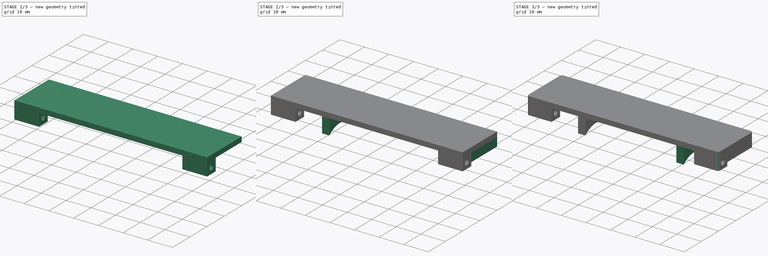
[diagram: build sequence overview — one tinted view per stage of 3, left to right]
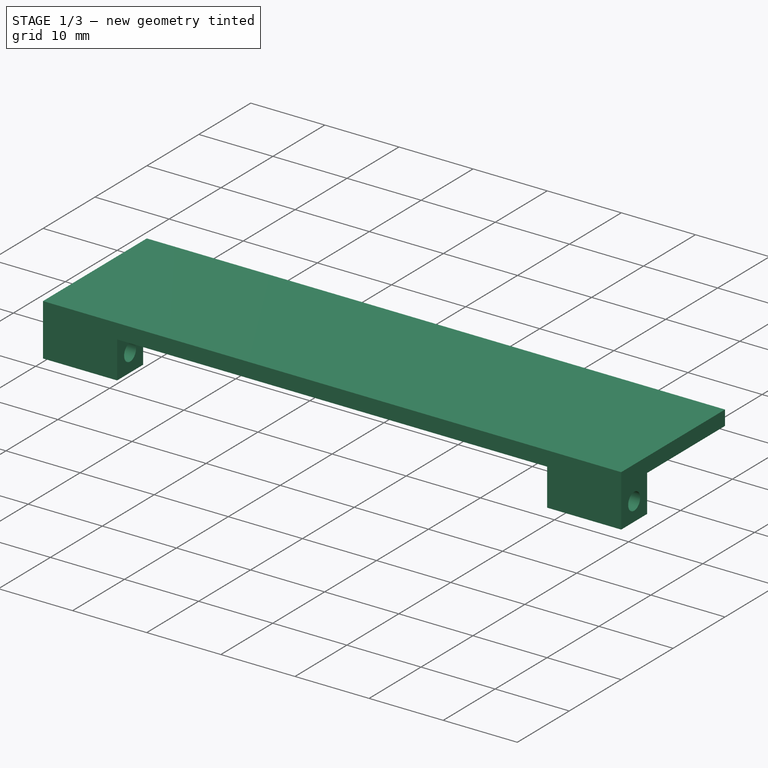
[diagram: stage 1 of 3 — iso view after this stage's code; geometry added in this stage tinted green]
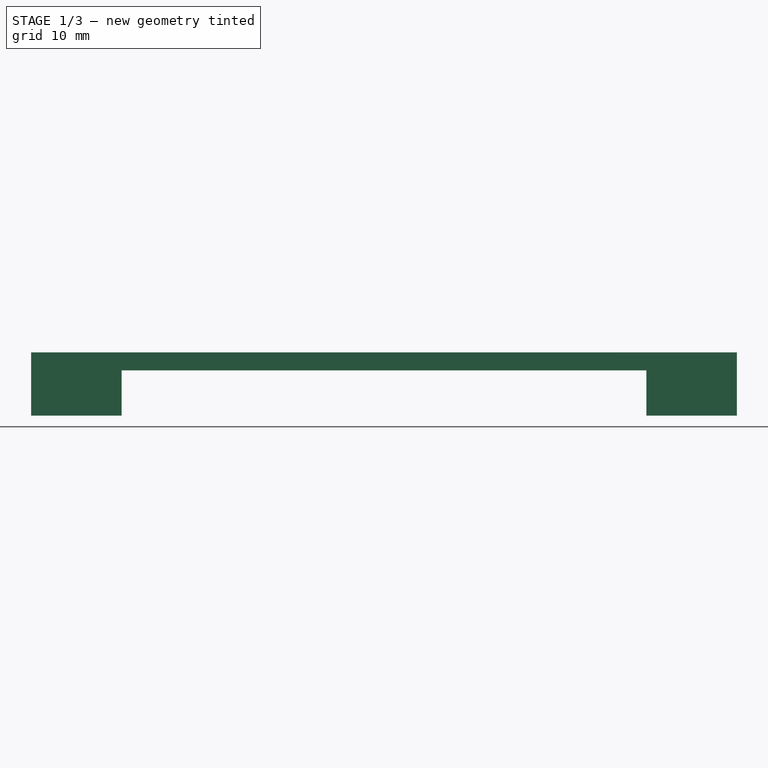
[diagram: stage 1 of 3 — front view after this stage's code; geometry added in this stage tinted green]
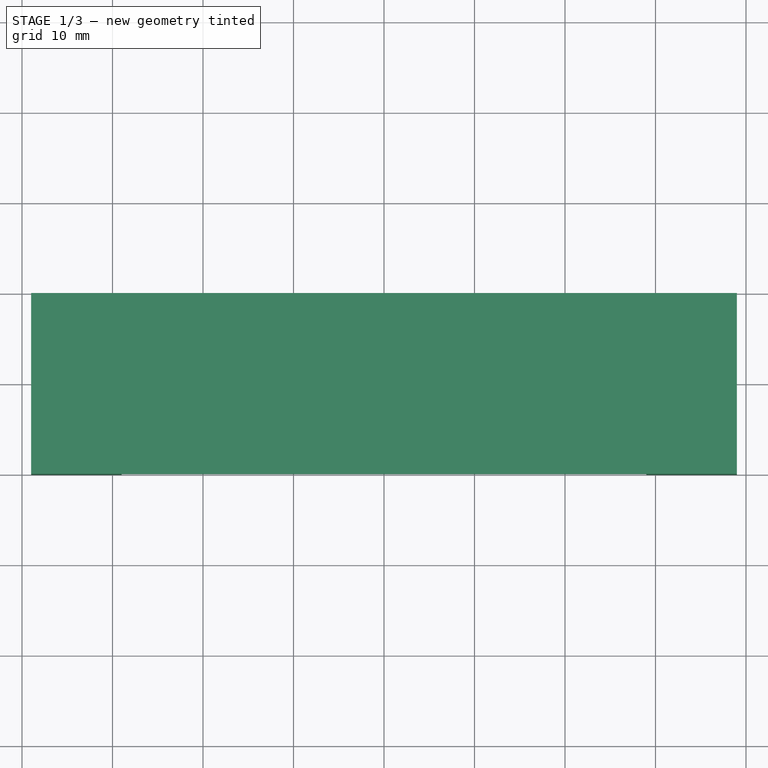
[diagram: stage 1 of 3 — top view after this stage's code; geometry added in this stage tinted green]
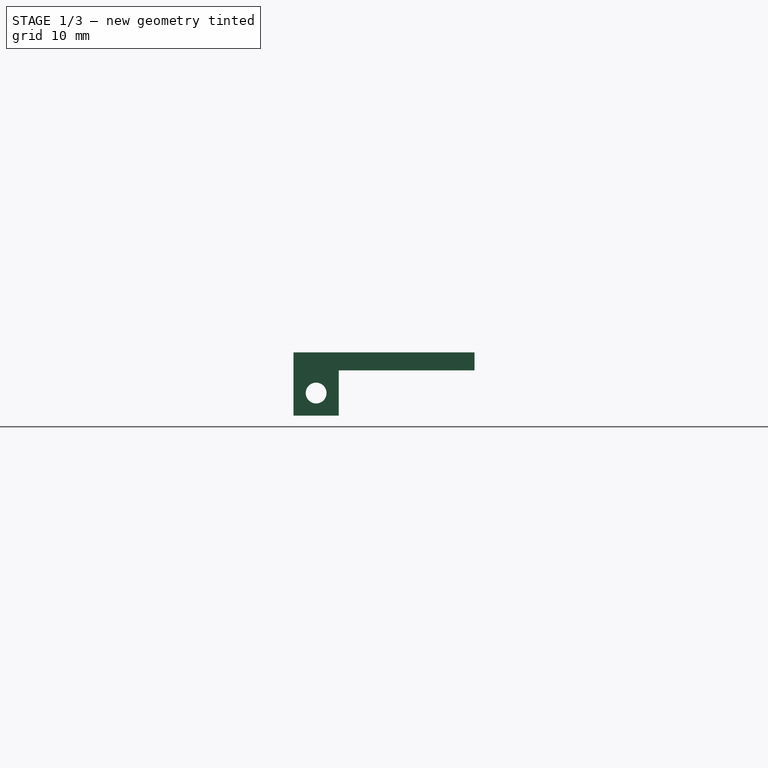
[diagram: stage 1 of 3 — right view after this stage's code; geometry added in this stage tinted green]
FCSTD DOCUMENT  (FreeCAD 0.21R33771 (Git))
Label: Battery_cover
License: All rights reserved
LicenseURL: http://en.wikipedia.org/wiki/All_rights_reserved
objects: Sketcher::SketchObject×7, PartDesign::Pad×6, PartDesign::Pocket×1, PartDesign::Fillet×1, PartDesign::Body×1
note: 24 computed .brp shape members not serialized (recipe doc carries the construction recipe); baked Part::Feature solids carry a one-line shape summary decoded from their .brp

FEATURE [Sketcher::SketchObject] Sketch
  FullyConstrained = true
  MapMode = 5
  Support = -> [XY_Plane]
  sketch-geometry (4):
    g0: LineSegment StartX=-39 StartY=10 StartZ=0 EndX=39 EndY=10 EndZ=0
    g1: LineSegment StartX=39 StartY=10 StartZ=0 EndX=39 EndY=-10 EndZ=0
    g2: LineSegment StartX=39 StartY=-10 StartZ=0 EndX=-39 EndY=-10 EndZ=0
    g3: LineSegment StartX=-39 StartY=-10 StartZ=0 EndX=-39 EndY=10 EndZ=0
  constraints (11):
    c: Coincident(g0,g1)
    c: Coincident(g1,g2)
    c: Coincident(g2,g3)
    c: Coincident(g3,g0)
    c: Horizontal(g0)
    c: Horizontal(g2)
    c: Vertical(g1)
    c: Vertical(g3)
    c: Symmetric(g2,g0,g-1)
    c: DistanceX(g0,g0) = 78
    c: DistanceY(g1,g1) = 20
FEATURE [PartDesign::Pad] Pad
  Direction = (0,0,1)
  Length = 2
  Length2 = 10
  Profile = -> Sketch
  ReferenceAxis = -> Sketch [N_Axis]
  Type = 0
FEATURE [Sketcher::SketchObject] Sketch001
  ExternalGeometry = -> [Pad]
  FullyConstrained = true
  MapMode = 5
  Placement = pos=(0,0,0) rot=(1,0,0;3.14159rad)
  Support = -> [Pad]
  sketch-geometry (8):
    g0: LineSegment StartX=29 StartY=10 StartZ=0 EndX=39 EndY=10 EndZ=0
    g1: LineSegment StartX=39 StartY=10 StartZ=0 EndX=39 EndY=5 EndZ=0
    g2: LineSegment StartX=39 StartY=5 StartZ=0 EndX=29 EndY=5 EndZ=0
    g3: LineSegment StartX=29 StartY=5 StartZ=0 EndX=29 EndY=10 EndZ=0
    g4: LineSegment StartX=-39 StartY=10 StartZ=0 EndX=-29 EndY=10 EndZ=0
    g5: LineSegment StartX=-29 StartY=10 StartZ=0 EndX=-29 EndY=5 EndZ=0
    g6: LineSegment StartX=-29 StartY=5 StartZ=0 EndX=-39 EndY=5 EndZ=0
    g7: LineSegment StartX=-39 StartY=5 StartZ=0 EndX=-39 EndY=10 EndZ=0
  constraints (22):
    c: Coincident(g0,g1)
    c: Coincident(g1,g2)
    c: Coincident(g2,g3)
    c: Coincident(g3,g0)
    c: Horizontal(g0)
    c: Horizontal(g2)
    c: Vertical(g1)
    c: Vertical(g3)
    c: Coincident(g4,g5)
    c: Coincident(g5,g6)
    c: Coincident(g6,g7)
    c: Coincident(g7,g4)
    c: Horizontal(g4)
    c: Horizontal(g6)
    c: Vertical(g5)
    c: Vertical(g7)
    c: Coincident(g4,g-4)
    c: Coincident(g0,g-3)
    c: Equal(g6,g2)
    c: Equal(g5,g3)
    c: DistanceY(g7,g7) = 5
    c: DistanceX(g4,g4) = 10
FEATURE [PartDesign::Pad] Pad001
  BaseFeature = -> Pad
  Direction = (0,0,-1)
  Length = 5
  Length2 = 10
  Profile = -> Sketch001
  ReferenceAxis = -> Sketch001 [N_Axis]
  Type = 0
FEATURE [Sketcher::SketchObject] Sketch002
  ExternalGeometry = -> [Pad001]
  FullyConstrained = true
  MapMode = 5
  Placement = pos=(39,0,0) rot=(0.57735,0.57735,0.57735;2.0944rad)
  Support = -> [Pad001]
  sketch-geometry (3):
    g0: Circle CenterX=-7.5 CenterY=-2.5 CenterZ=0 NormalX=0 NormalY=0 NormalZ=1 AngleXU=0 Radius=1.15
    g1: LineSegment StartX=-7.5 StartY=-2.5 StartZ=0 EndX=-10 EndY=-5 EndZ=0
    g2: LineSegment StartX=-5 StartY=-5 StartZ=0 EndX=-7.5 EndY=-2.5 EndZ=0
  constraints (7):
    c: Diameter(g0) = 2.3
    c: Coincident(g1,g0)
    c: Coincident(g1,g-4)
    c: Coincident(g2,g-5)
    c: Coincident(g2,g0)
    c: Equal(g1,g2)
    c: DistanceY(g0,g-3) = 4.5
FEATURE [PartDesign::Pocket] Pocket
  BaseFeature = -> Pad001
  Direction = (-1,0,0)
  Length = 5
  Length2 = 5
  Profile = -> Sketch002
  ReferenceAxis = -> Sketch002 [N_Axis]
  Type = 1
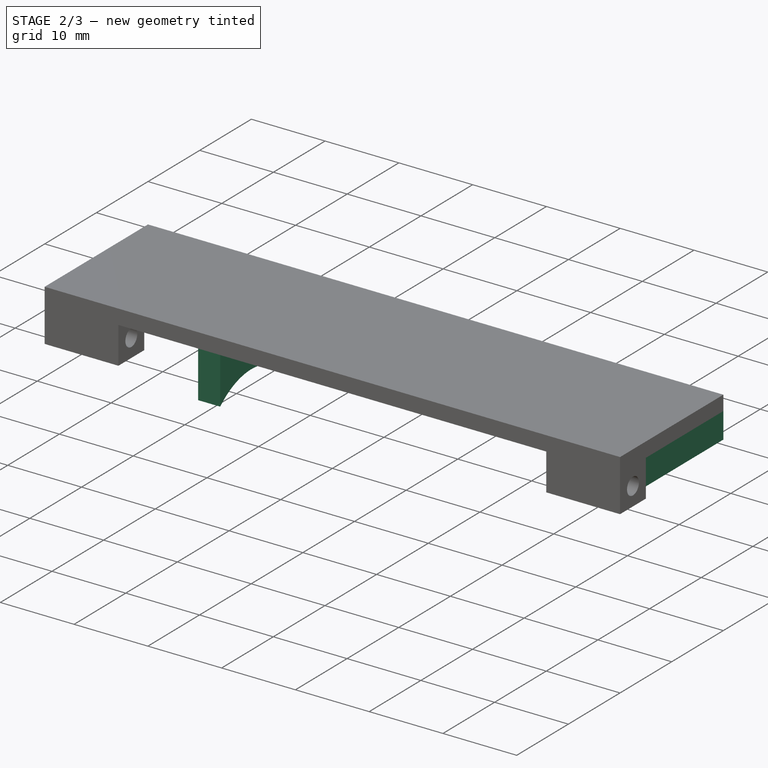
[diagram: stage 2 of 3 — iso view after this stage's code; geometry added in this stage tinted green]
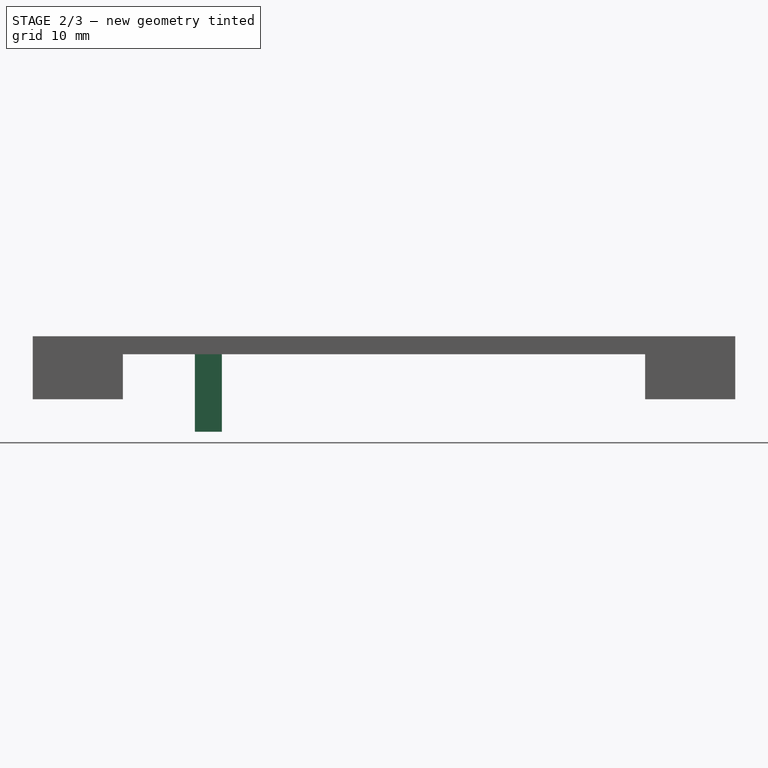
[diagram: stage 2 of 3 — front view after this stage's code; geometry added in this stage tinted green]
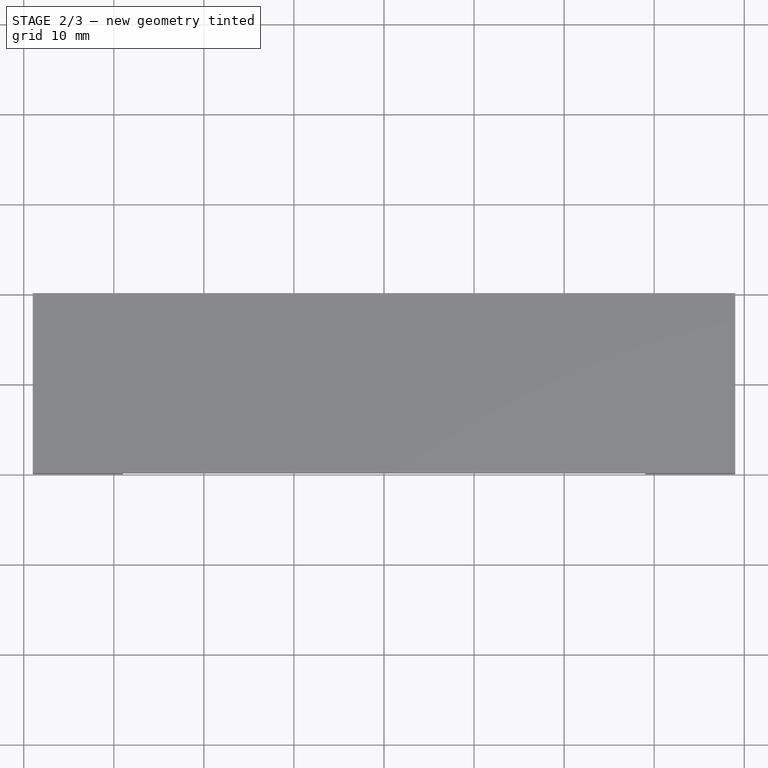
[diagram: stage 2 of 3 — top view after this stage's code; geometry added in this stage tinted green]
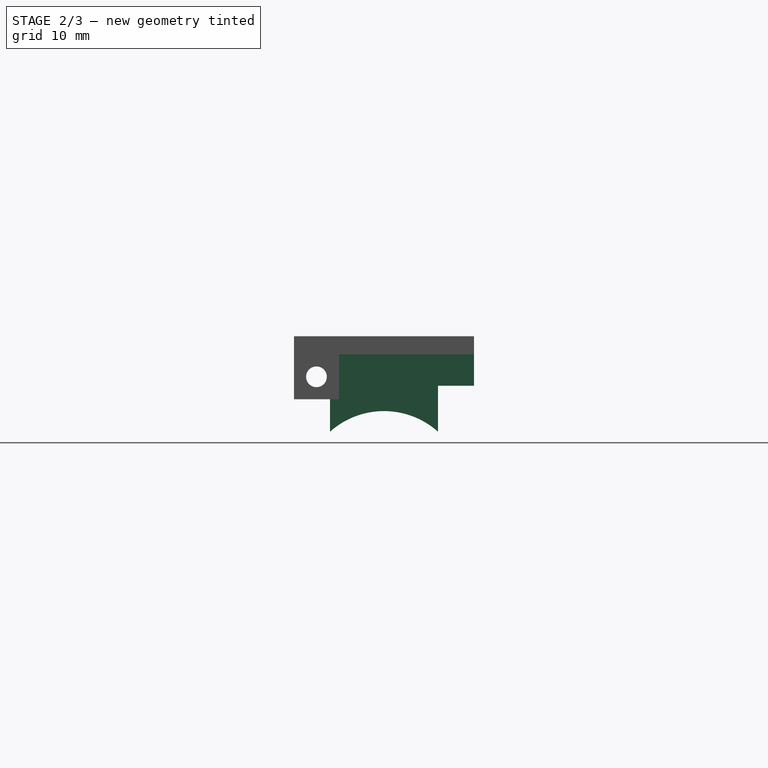
[diagram: stage 2 of 3 — right view after this stage's code; geometry added in this stage tinted green]
FEATURE [Sketcher::SketchObject] Sketch003
  ExternalGeometry = -> [Pocket]
  FullyConstrained = true
  MapMode = 5
  Placement = pos=(0,0,0) rot=(1,0,0;3.14159rad)
  Support = -> [Pocket]
  sketch-geometry (8):
    g0: LineSegment StartX=36 StartY=5 StartZ=0 EndX=39 EndY=5 EndZ=0
    g1: LineSegment StartX=39 StartY=5 StartZ=0 EndX=39 EndY=-10 EndZ=0
    g2: LineSegment StartX=39 StartY=-10 StartZ=0 EndX=36 EndY=-10 EndZ=0
    g3: LineSegment StartX=36 StartY=-10 StartZ=0 EndX=36 EndY=5 EndZ=0
    g4: LineSegment StartX=-39 StartY=5 StartZ=0 EndX=-36 EndY=5 EndZ=0
    g5: LineSegment StartX=-36 StartY=5 StartZ=0 EndX=-36 EndY=-10 EndZ=0
    g6: LineSegment StartX=-36 StartY=-10 StartZ=0 EndX=-39 EndY=-10 EndZ=0
    g7: LineSegment StartX=-39 StartY=-10 StartZ=0 EndX=-39 EndY=5 EndZ=0
  constraints (21):
    c: Coincident(g1,g2)
    c: Coincident(g2,g3)
    c: Horizontal(g0)
    c: Horizontal(g2)
    c: Vertical(g3)
    c: Coincident(g4,g5)
    c: Coincident(g5,g6)
    c: Coincident(g6,g7)
    c: Coincident(g7,g4)
    c: Horizontal(g4)
    c: Horizontal(g6)
    c: Vertical(g5)
    c: Coincident(g1,g-5)
    c: Coincident(g4,g-3)
    c: Coincident(g-4,g6)
    c: Equal(g6,g2)
    c: DistanceX(g6,g6) = 3
    c: Coincident(g1,g0)
    c: Coincident(g3,g0)
    c: Horizontal(g4,g0)
    c: Vertical(g1)
FEATURE [PartDesign::Pad] Pad002
  BaseFeature = -> Pocket
  Direction = (0,0,-1)
  Length = 3.5
  Length2 = 10
  Profile = -> Sketch003
  ReferenceAxis = -> Sketch003 [N_Axis]
  Type = 0
FEATURE [Sketcher::SketchObject] Sketch004
  AttachmentOffset = pos=(0,0,-60) rot=(0,0,1;0rad)
  FullyConstrained = true
  MapMode = 5
  Placement = pos=(-21,0,0) rot=(0.57735,0.57735,0.57735;2.0944rad)
  Support = -> [Pad002]
  sketch-geometry (4):
    g0: LineSegment StartX=-6 StartY=0 StartZ=0 EndX=6 EndY=0 EndZ=0
    g1: LineSegment StartX=6 StartY=0 StartZ=0 EndX=6 EndY=-8.6 EndZ=0
    g2: LineSegment StartX=-6 StartY=0 StartZ=0 EndX=-6 EndY=-8.6 EndZ=0
    g3: ArcOfCircle CenterX=-7e-16 CenterY=-15.3082 CenterZ=0 NormalX=0 NormalY=0 NormalZ=1 AngleXU=0 Radius=9 StartAngle=0.841069 EndAngle=2.30052
  constraints (12):
    c: PointOnObject(g0,g-1)
    c: PointOnObject(g0,g-1)
    c: Coincident(g1,g0)
    c: Vertical(g1)
    c: Coincident(g2,g0)
    c: Vertical(g2)
    c: Coincident(g3,g2)
    c: Coincident(g3,g1)
    c: Diameter(g3) = 18
    c: Symmetric(g1,g2,g-2)
    c: DistanceY(g1,g1) = 8.6
    c: DistanceX(g0,g0) = 12
FEATURE [PartDesign::Pad] Pad003
  BaseFeature = -> Pad002
  Direction = (1,0,0)
  Length = 3
  Length2 = 3
  Profile = -> Sketch004
  ReferenceAxis = -> Sketch004 [N_Axis]
  Type = 0
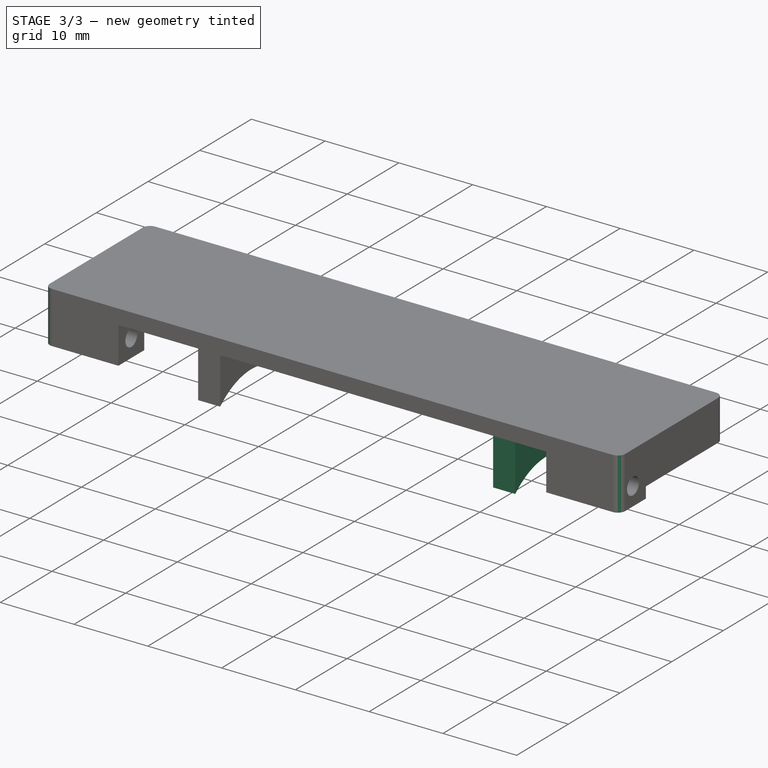
[diagram: stage 3 of 3 — iso view after this stage's code; geometry added in this stage tinted green]
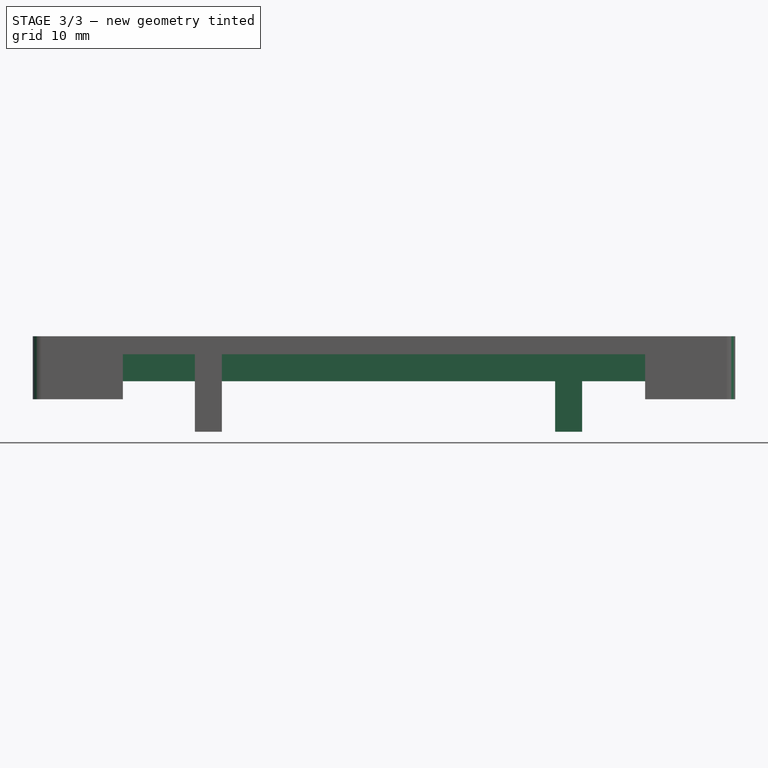
[diagram: stage 3 of 3 — front view after this stage's code; geometry added in this stage tinted green]
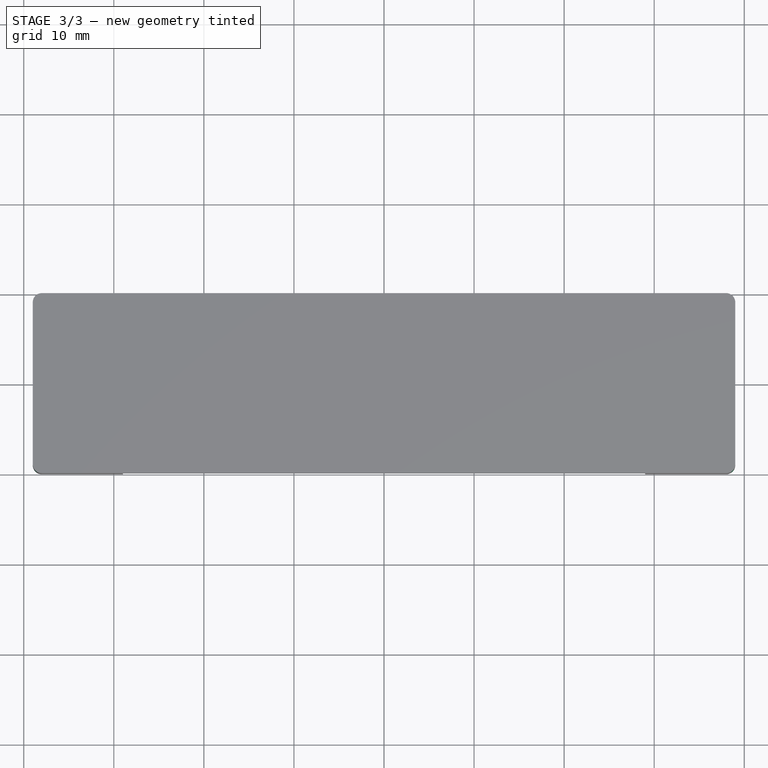
[diagram: stage 3 of 3 — top view after this stage's code; geometry added in this stage tinted green]
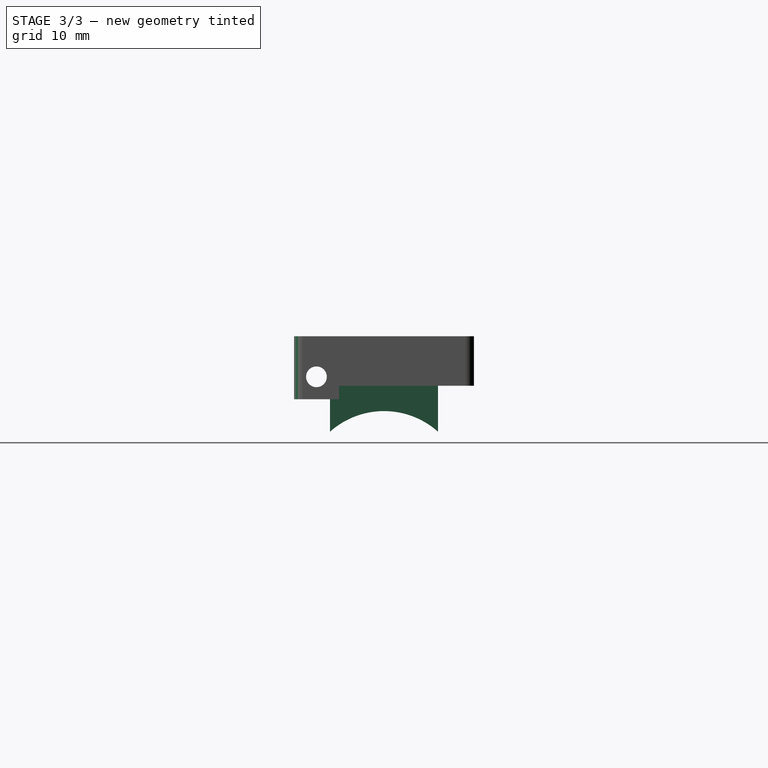
[diagram: stage 3 of 3 — right view after this stage's code; geometry added in this stage tinted green]
FEATURE [Sketcher::SketchObject] Sketch005
  AttachmentOffset = pos=(0,0,-20) rot=(0,0,1;0rad)
  FullyConstrained = true
  MapMode = 5
  Placement = pos=(19,0,0) rot=(0.57735,0.57735,0.57735;2.0944rad)
  Support = -> [Pad002]
  sketch-geometry (4):
    g0: LineSegment StartX=-6 StartY=0 StartZ=0 EndX=6 EndY=0 EndZ=0
    g1: LineSegment StartX=6 StartY=0 StartZ=0 EndX=6 EndY=-8.6 EndZ=0
    g2: LineSegment StartX=-6 StartY=0 StartZ=0 EndX=-6 EndY=-8.6 EndZ=0
    g3: ArcOfCircle CenterX=-5e-16 CenterY=-15.3082 CenterZ=0 NormalX=0 NormalY=0 NormalZ=1 AngleXU=0 Radius=9 StartAngle=0.841069 EndAngle=2.30052
  constraints (12):
    c: PointOnObject(g0,g-1)
    c: PointOnObject(g0,g-1)
    c: Coincident(g1,g0)
    c: Vertical(g1)
    c: Coincident(g2,g0)
    c: Vertical(g2)
    c: Coincident(g3,g2)
    c: Coincident(g3,g1)
    c: Diameter(g3) = 18
    c: Symmetric(g1,g2,g-2)
    c: DistanceY(g1,g1) = 8.6
    c: DistanceX(g0,g0) = 12
FEATURE [PartDesign::Pad] Pad004
  BaseFeature = -> Pad003
  Direction = (1,0,0)
  Length = 3
  Length2 = 10
  Profile = -> Sketch005
  ReferenceAxis = -> Sketch005 [N_Axis]
  Type = 0
FEATURE [PartDesign::Fillet] Fillet
  Base = -> Pad004 [Edge2,Edge33,Edge47,Edge11,Edge7,Edge42,Edge1,Edge16]
  BaseFeature = -> Pad004
  Radius = 1
  SupportTransform = false
  UseAllEdges = false
FEATURE [Sketcher::SketchObject] Sketch006
  ExternalGeometry = -> [Fillet]
  FullyConstrained = true
  MapMode = 5
  Placement = pos=(0,0,0) rot=(1,0,0;3.14159rad)
  Support = -> [Fillet]
  sketch-geometry (10):
    g0: LineSegment StartX=-39 StartY=1 StartZ=0 EndX=-39 EndY=-1 EndZ=0
    g1: LineSegment StartX=-39 StartY=-1 StartZ=0 EndX=39 EndY=-1 EndZ=0
    g2: LineSegment StartX=39 StartY=-1 StartZ=0 EndX=39 EndY=1 EndZ=0
    g3: LineSegment StartX=39 StartY=1 StartZ=0 EndX=-39 EndY=1 EndZ=0
    g4: GeomPoint X=0 Y=0 Z=0
    g5: LineSegment StartX=-39 StartY=-7 StartZ=0 EndX=-39 EndY=-9 EndZ=0
    g6: LineSegment StartX=-39 StartY=-9 StartZ=0 EndX=39 EndY=-9 EndZ=0
    g7: LineSegment StartX=39 StartY=-9 StartZ=0 EndX=39 EndY=-7 EndZ=0
    g8: LineSegment StartX=39 StartY=-7 StartZ=0 EndX=-39 EndY=-7 EndZ=0
    g9: GeomPoint X=-3.6e-15 Y=-8 Z=0
  constraints (24):
    c: Coincident(g0,g1)
    c: Coincident(g1,g2)
    c: Coincident(g2,g3)
    c: Coincident(g3,g0)
    c: Horizontal(g1)
    c: Horizontal(g3)
    c: Vertical(g0)
    c: Vertical(g2)
    c: Symmetric(g1,g0,g4)
    c: Coincident(g4,g-1)
    c: Coincident(g5,g6)
    c: Coincident(g6,g7)
    c: Coincident(g7,g8)
    c: Coincident(g8,g5)
    c: Horizontal(g6)
    c: Horizontal(g8)
    c: Vertical(g5)
    c: Vertical(g7)
    c: Symmetric(g6,g5,g9)
    c: Vertical(g5,g0)
    c: Equal(g5,g0)
    c: DistanceY(g5,g5) = 2
    c: Coincident(g5,g-3)
    c: Vertical(g7,g1)
FEATURE [PartDesign::Pad] Pad005
  BaseFeature = -> Fillet
  Direction = (0,0,-1)
  Length = 3
  Length2 = 10
  Profile = -> Sketch006
  ReferenceAxis = -> Sketch006 [N_Axis]
  Type = 0
FEATURE [PartDesign::Body] Body
  Group = -> [Sketch,Pad,Sketch001,Pad001,Sketch002,Pocket,Sketch003,Pad002,Sketch004,Pad003,Sketch005,Pad004,Fillet,Sketch006,Pad005]
  Origin = -> Origin
  Tip = -> Pad005
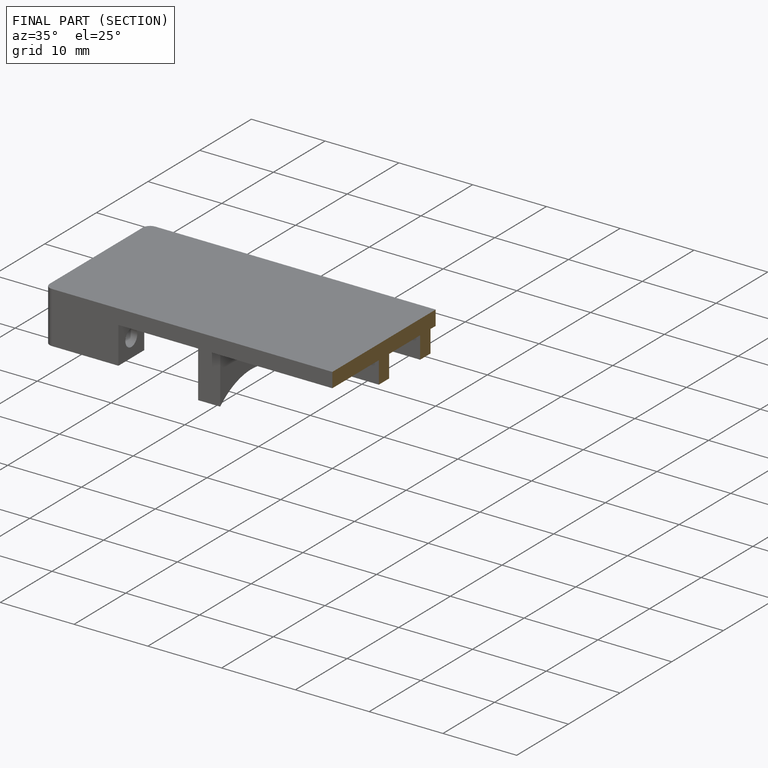
[diagram: finished part — half-section view (interior)]
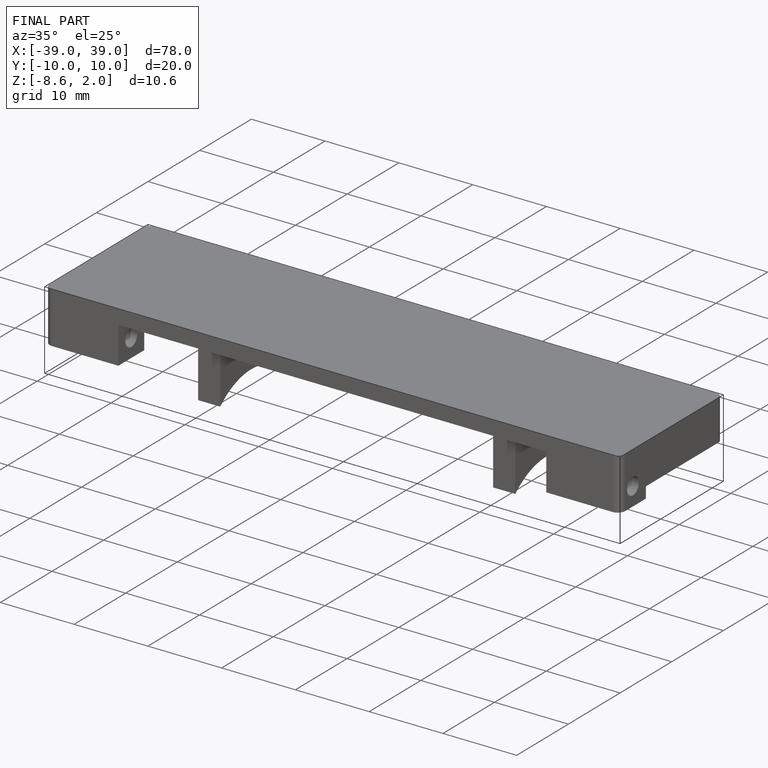
[diagram: finished part — iso view with bounding-box wireframe]
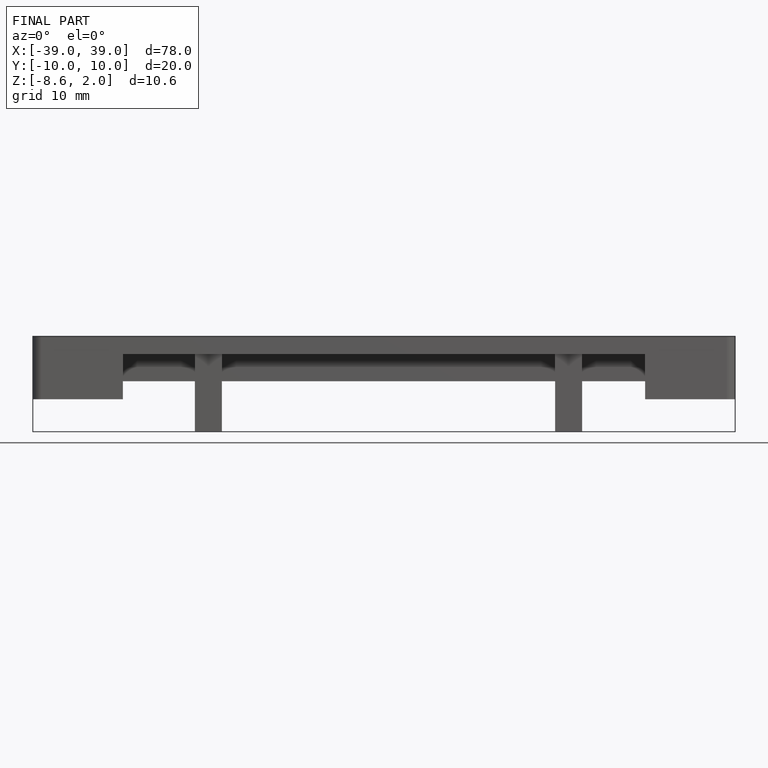
[diagram: finished part — front view with bounding-box wireframe]
